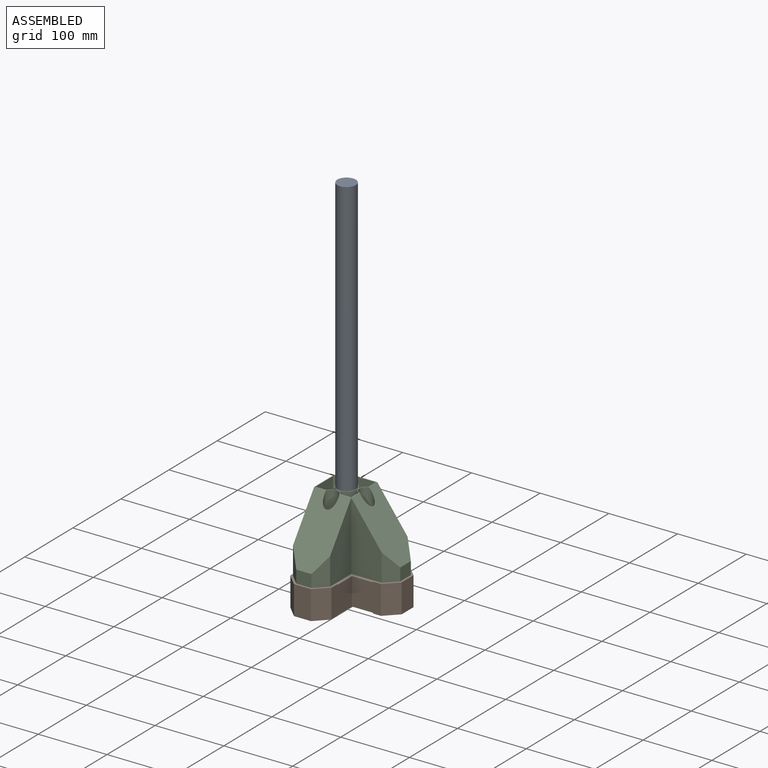
[diagram: assembled view]
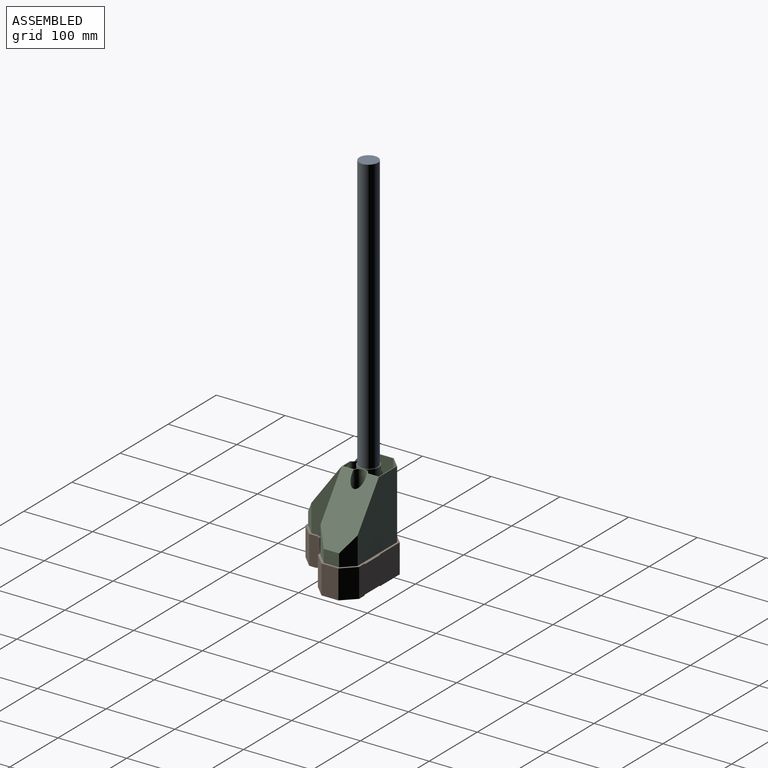
[diagram: assembled view, second angle]
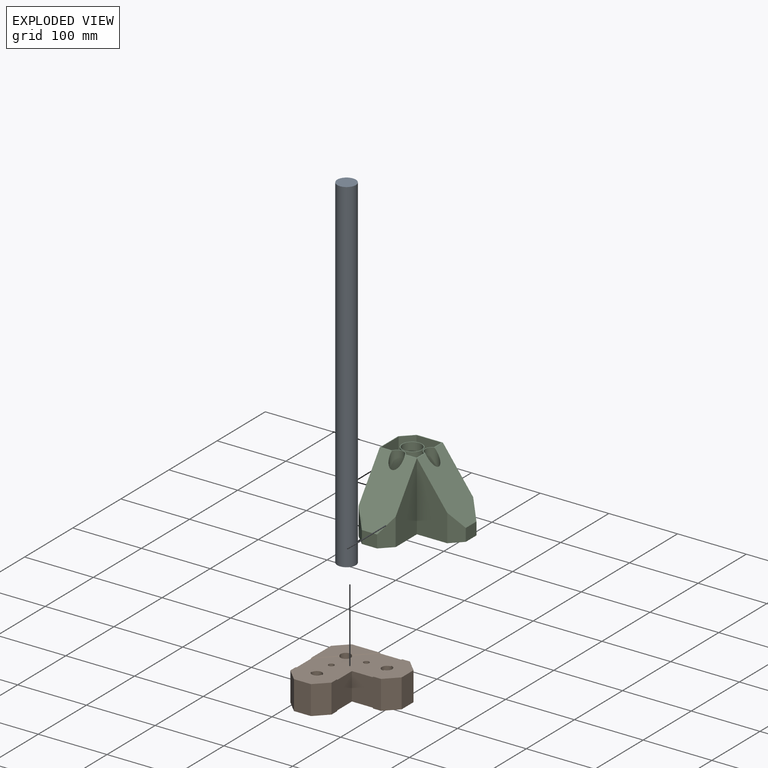
[diagram: exploded view]
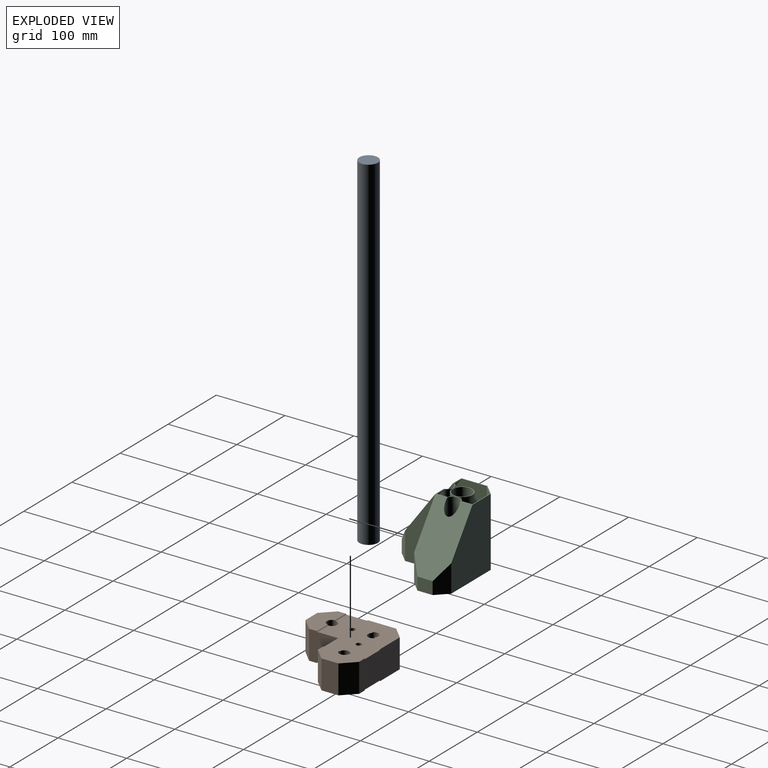
[diagram: exploded view, second angle]
ASSEMBLY  parts=3 mates=2
PART A: 3 faces, bbox 27x27x500 mm
  f0: cylinder r=13.5mm len=500mm, axis (0,0,-1), area 42411.5mm2, adj f1,f2
  f1: plane 27x27mm, normal (0,0,1), area 572.6mm2, adj f0
  f2: plane 27x27mm, normal (0,0,-1), area 572.6mm2, adj f0
PART B: 107 faces, bbox 120x120x42 mm
  f0: plane 90x90mm, normal (0,0,-1), area 4448.7mm2, adj f10,f14,f15,f19,f26,f28,f30,f34
  f1: plane 90x90mm, normal (0,0,1), area 5034.4mm2, adj f10,f14,f15,f19,f20,f22,f24,f32
  f2: plane 38x15.74mm, normal (0,1,0), area 598mm2, adj f7,f8,f84,f87
  f3: plane 38x2mm, normal (-1,0,0), area 76mm2, adj f7,f8,f48,f85
  f4: plane 38x7.25mm, normal (0,1,0), area 275.5mm2, adj f7,f8,f49,f83
  f5: plane 38x15.74mm, normal (-1,0,0), area 598mm2, adj f7,f8,f81,f86
  f6: plane 38x7.25mm, normal (-1,0,0), area 275.5mm2, adj f7,f8,f47,f82
  f7: plane 118x118mm, normal (0,0,-1), area 8698.4mm2, adj f2,f3,f4,f5,f6,f9,f44,f45
  f8: plane 118x118mm, normal (0,0,1), area 7734.2mm2, adj f2,f3,f4,f5,f6,f9,f44,f45
  f9: plane 42x17.68mm, normal (-0.71,0.71,0), area 207.5mm2, adj f7,f8,f10,f19,f44,f52,f91,f98
  f10: plane 84.64x42mm, normal (-1,0,0), area 3492.7mm2, adj f0,f1,f9,f11,f89,f91,f92,f96
  f11: plane 42x17.68mm, normal (-0.71,-0.71,0), area 1050mm2, adj f10,f12,f89,f99
  f12: plane 42x24.64mm, normal (0,-1,0), area 1035.1mm2, adj f11,f13,f89,f99
  f13: plane 42x17.68mm, normal (0.71,-0.71,0), area 1050mm2, adj f12,f14,f89,f99
  f14: plane 42.32x42mm, normal (1,0,0), area 1716.5mm2, adj f0,f1,f13,f15,f89,f97,f99,f106
  f15: plane 42.32x42mm, normal (0,-1,0), area 1716.5mm2, adj f0,f1,f14,f16,f90,f95,f100,f104
  f16: plane 42x17.68mm, normal (0.71,-0.71,0), area 1050mm2, adj f15,f17,f90,f100
  f17: plane 42x24.64mm, normal (1,0,0), area 1035.1mm2, adj f16,f18,f90,f100
  f18: plane 42x17.68mm, normal (0.71,0.71,0), area 1050mm2, adj f17,f19,f90,f100
  f19: plane 84.64x42mm, normal (0,1,0), area 3492.7mm2, adj f0,f1,f9,f18,f90,f91,f93,f94
  f20: cylinder r=7.5mm len=16mm, axis (0,0,1), area 729.4mm2, adj f1,f21,f91,f92,f93
  f21: plane 15x15mm, normal (0,0,1), area 34.8mm2, adj f20,f31
  f22: cylinder r=7.5mm len=16mm, axis (0,0,1), area 729.4mm2, adj f1,f23,f89,f96,f97
  f23: plane 15x15mm, normal (0,0,1), area 34.8mm2, adj f22,f29
  f24: cylinder r=7.5mm len=16mm, axis (0,0,1), area 729.4mm2, adj f1,f25,f90,f94,f95
  f25: plane 15x15mm, normal (0,0,1), area 34.8mm2, adj f24,f27
  f26: cylinder r=3.3mm len=22.58mm, axis (0,0,1), area 456.8mm2, adj f0,f27,f100,f103,f104
  f27: cone r=3.3mm half-angle=45deg, axis (0,0,1), area 152.3mm2, adj f25,f26
  f28: cylinder r=3.3mm len=22.58mm, axis (0,0,1), area 456.8mm2, adj f0,f29,f99,f105,f106
  f29: cone r=3.3mm half-angle=45deg, axis (0,0,1), area 152.3mm2, adj f23,f28
  f30: cylinder r=3.3mm len=22.58mm, axis (0,0,1), area 456.8mm2, adj f0,f31,f98,f101,f102
  f31: cone r=3.3mm half-angle=45deg, axis (0,0,1), area 152.3mm2, adj f21,f30
  f32: cylinder r=4mm len=30mm, axis (0,0,1), area 754mm2, adj f1,f43
  f33: cylinder r=4mm len=30mm, axis (0,0,1), area 754mm2, adj f1,f38
  f34: plane 30x10mm, normal (0,-1,0), area 300mm2, adj f0,f35,f37,f38
  f35: plane 15x10mm, normal (1,0,0), area 150mm2, adj f0,f34,f36,f38
  f36: plane 30x10mm, normal (0,1,0), area 300mm2, adj f0,f35,f37,f38
  f37: plane 15x10mm, normal (-1,0,0), area 150mm2, adj f0,f34,f36,f38
  f38: plane 30x15mm, normal (0,0,-1), area 399.7mm2, adj f33,f34,f35,f36,f37
  f39: plane 15x10mm, normal (0,1,0), area 150mm2, adj f0,f40,f42,f43
  f40: plane 30x10mm, normal (-1,0,0), area 300mm2, adj f0,f39,f41,f43
  f41: plane 15x10mm, normal (0,-1,0), area 150mm2, adj f0,f40,f42,f43
  f42: plane 30x10mm, normal (1,0,0), area 300mm2, adj f0,f39,f41,f43
  f43: plane 30x15mm, normal (0,0,-1), area 399.7mm2, adj f32,f39,f40,f41,f42
  f44: plane 85.23x38mm, normal (1,0,0), area 3238.8mm2, adj f7,f8,f9,f45
  f45: plane 38x17.09mm, normal (0.71,0.71,0), area 918.5mm2, adj f7,f8,f44,f46
  f46: plane 38x23.82mm, normal (0,1,0), area 905mm2, adj f7,f8,f45,f47
  f47: plane 38x17.09mm, normal (-0.71,0.71,0), area 918.5mm2, adj f6,f7,f8,f46
  f48: plane 38x2mm, normal (0,1,0), area 76mm2, adj f3,f7,f8,f88
  f49: plane 38x17.09mm, normal (-0.71,0.71,0), area 918.5mm2, adj f4,f7,f8,f50
  f50: plane 38x23.82mm, normal (-1,0,0), area 905mm2, adj f7,f8,f49,f51
  f51: plane 38x17.09mm, normal (-0.71,-0.71,0), area 918.5mm2, adj f7,f8,f50,f52
  f52: plane 85.23x38mm, normal (0,-1,0), area 3238.8mm2, adj f7,f8,f9,f51
  f53: cylinder r=8.5mm len=17mm, axis (0,0,1), area 801.1mm2, adj f7,f54
  f54: plane 17x17mm, normal (0,0,-1), area 67.1mm2, adj f53,f64
  f55: cylinder r=8.5mm len=17mm, axis (0,0,1), area 801.1mm2, adj f7,f56
  f56: plane 17x17mm, normal (0,0,-1), area 67.1mm2, adj f55,f62
  f57: cylinder r=8.5mm len=17mm, axis (0,0,1), area 801.1mm2, adj f7,f58
  f58: plane 17x17mm, normal (0,0,-1), area 67.1mm2, adj f57,f60
  f59: cylinder r=4.3mm len=20.17mm, axis (0,0,1), area 544.8mm2, adj f8,f60
  f60: cone r=4.01mm half-angle=45deg, axis (0,0,1), area 144mm2, adj f58,f59
  f61: cylinder r=4.3mm len=20.17mm, axis (0,0,1), area 544.8mm2, adj f8,f62
  f62: cone r=4.01mm half-angle=45deg, axis (0,0,1), area 144mm2, adj f56,f61
  f63: cylinder r=4.3mm len=20.17mm, axis (0,0,1), area 544.8mm2, adj f8,f64
  f64: cone r=4.01mm half-angle=45deg, axis (0,0,1), area 144mm2, adj f54,f63
  f65: cylinder r=5mm len=28mm, axis (0,0,1), area 879.6mm2, adj f7,f76
  f66: cylinder r=5mm len=28mm, axis (0,0,1), area 879.6mm2, adj f7,f71
  f67: plane 32x5mm, normal (0,1,0), area 160mm2, adj f68,f70,f71,f77
  f68: plane 17x5mm, normal (-1,0,0), area 85mm2, adj f67,f69,f71,f78
  f69: plane 37x10mm, normal (0,-1,0), area 332.5mm2, adj f8,f68,f70,f71,f78
  f70: plane 22x10mm, normal (1,0,0), area 182.5mm2, adj f8,f67,f69,f71,f77
  f71: plane 32x17mm, normal (0,0,1), area 465.5mm2, adj f66,f67,f68,f69,f70
  f72: plane 22x10mm, normal (0,-1,0), area 182.5mm2, adj f8,f73,f75,f76,f79
  f73: plane 37x10mm, normal (1,0,0), area 332.5mm2, adj f8,f72,f74,f76,f80
  f74: plane 17x5mm, normal (0,1,0), area 85mm2, adj f73,f75,f76,f80
  f75: plane 32x5mm, normal (-1,0,0), area 160mm2, adj f72,f74,f76,f79
  f76: plane 32x17mm, normal (0,0,1), area 465.5mm2, adj f65,f72,f73,f74,f75
  f77: plane 37x5mm, normal (0,0.71,0.71), area 244mm2, adj f8,f67,f70,f78
  f78: plane 22x5mm, normal (-0.71,0,0.71), area 137.9mm2, adj f8,f68,f69,f77
  f79: plane 37x5mm, normal (-0.71,0,0.71), area 244mm2, adj f8,f72,f75,f80
  f80: plane 22x5mm, normal (0,0.71,0.71), area 137.9mm2, adj f8,f73,f74,f79
  f81: plane 38x4.66mm, normal (-0.71,0.71,0), area 250.3mm2, adj f5,f7,f8,f82
  f82: plane 38x4.66mm, normal (-0.71,-0.71,0), area 250.3mm2, adj f6,f7,f8,f81
  f83: plane 38x4.66mm, normal (0.71,0.71,0), area 250.3mm2, adj f4,f7,f8,f84
  f84: plane 38x4.66mm, normal (-0.71,0.71,0), area 250.3mm2, adj f2,f7,f8,f83
  f85: plane 38x4.3mm, normal (-0.71,0.71,0), area 231.3mm2, adj f3,f7,f8,f86
  f86: plane 38x4.3mm, normal (-0.71,-0.71,0), area 231.3mm2, adj f5,f7,f8,f85
  f87: plane 38x4.3mm, normal (0.71,0.71,0), area 231.3mm2, adj f2,f7,f8,f88
  f88: plane 38x4.3mm, normal (-0.71,0.71,0), area 231.3mm2, adj f7,f8,f48,f87
  f89: plane 60x29mm, normal (0,0,1), area 1354.1mm2, adj f10,f11,f12,f13,f14,f22,f96,f97
  f90: plane 60x29mm, normal (0,0,1), area 1354.1mm2, adj f15,f16,f17,f18,f19,f24,f94,f95
  f91: plane 58.59x58.59mm, normal (0,0,1), area 1486.5mm2, adj f9,f10,f19,f20,f92,f93
  f92: plane 25.45x24.7mm, normal (0.5,-0.5,0.71), area 48.7mm2, adj f1,f10,f20,f91
  f93: plane 25.45x24.7mm, normal (0.5,-0.5,0.71), area 48.7mm2, adj f1,f19,f20,f91
  f94: plane 22.57x1mm, normal (-0.71,0,0.71), area 31.9mm2, adj f1,f19,f24,f90
  f95: plane 22.57x1mm, normal (-0.71,0,0.71), area 31.9mm2, adj f1,f15,f24,f90
  f96: plane 22.57x1mm, normal (0,0.71,0.71), area 31.9mm2, adj f1,f10,f22,f89
  f97: plane 22.57x1mm, normal (0,0.71,0.71), area 31.9mm2, adj f1,f14,f22,f89
  f98: plane 58.59x58.59mm, normal (0,0,-1), area 1549.3mm2, adj f9,f10,f19,f30,f101,f102
  f99: plane 60x29mm, normal (0,0,-1), area 1416.9mm2, adj f10,f11,f12,f13,f14,f28,f105,f106
  f100: plane 60x29mm, normal (0,0,-1), area 1416.9mm2, adj f15,f16,f17,f18,f19,f26,f103,f104
  f101: plane 28.5x27.68mm, normal (0.5,-0.5,-0.71), area 54.7mm2, adj f0,f10,f30,f98
  f102: plane 28.5x27.68mm, normal (0.5,-0.5,-0.71), area 54.7mm2, adj f0,f19,f30,f98
  f103: plane 26.87x1.01mm, normal (-0.71,0,-0.71), area 37.8mm2, adj f0,f19,f26,f100
  f104: plane 26.87x1.01mm, normal (-0.71,0,-0.71), area 37.8mm2, adj f0,f15,f26,f100
  f105: plane 26.87x1.01mm, normal (0,0.71,-0.71), area 37.8mm2, adj f0,f10,f28,f99
  f106: plane 26.87x1.01mm, normal (0,0.71,-0.71), area 37.8mm2, adj f0,f14,f28,f99
PART C: 168 faces, bbox 114.1x114.1x100.1 mm
  f0: plane 81.72x60.05mm, normal (0,-0.81,0.59), area 3777.9mm2, adj f2,f3,f27,f29,f33,f40,f108,f109
  f1: plane 39.9x15.92mm, normal (-0.71,-0.71,0), area 655mm2, adj f2,f3,f20,f37,f109,f110
  f2: plane 100x82.16mm, normal (-1,0,0), area 6892.8mm2, adj f0,f1,f27,f32,f37,f108,f109
  f3: plane 22.16x18.33mm, normal (0,-1,0), area 406.2mm2, adj f0,f1,f20,f29,f37
  f4: plane 32.61x25.25mm, normal (0,0,1), area 672.1mm2, adj f5,f14,f54,f93,f98,f102,f106
  f5: plane 98.67x44.67mm, normal (0,1,0), area 2924mm2, adj f4,f7,f10,f59,f60,f96,f101,f102
  f6: plane 32.61x24.55mm, normal (0,0,1), area 662.9mm2, adj f19,f54,f59,f76,f82,f87,f105
  f7: plane 36.96x25.25mm, normal (0,0,1), area 815.7mm2, adj f5,f12,f60,f100,f101
  f8: plane 36.96x25.25mm, normal (0,0,1), area 815.7mm2, adj f11,f13,f57,f99,f104
  f9: plane 81.67x60mm, normal (0.81,0,0.59), area 4679.2mm2, adj f27,f30,f31,f34,f35,f36,f42
  f10: plane 82x60.24mm, normal (-0.81,0,-0.59), area 4359.5mm2, adj f5,f11,f12,f13,f21,f27,f57,f60
  f11: plane 99x81.33mm, normal (0,-1,0), area 6532.3mm2, adj f8,f10,f15,f17,f27,f57,f58,f90
  f12: plane 17x9.92mm, normal (-1,0,0), area 168.6mm2, adj f7,f10,f60,f100
  f13: plane 17x9.92mm, normal (-1,0,0), area 168.6mm2, adj f8,f10,f57,f99
  f14: cylinder r=5mm len=64.31mm, axis (0,0,1), area 1798mm2, adj f4,f15,f17,f74,f90,f91,f92,f93
  f15: plane 54.5x54.5mm, normal (0,0,1), area 1642mm2, adj f11,f14,f19,f24,f54,f58,f75,f79
  f16: plane 36.96x24.64mm, normal (0,0,1), area 791.5mm2, adj f23,f56,f59,f83,f84
  f17: plane 25.25x17.54mm, normal (0,0,1), area 427mm2, adj f11,f14,f92,f97,f103
  f18: plane 25.99x17.54mm, normal (0,0,1), area 436mm2, adj f19,f24,f80,f86,f88
  f19: cylinder r=5mm len=64.31mm, axis (0,0,1), area 1797.1mm2, adj f6,f15,f18,f73,f75,f76,f77,f78
  f20: plane 12.46x0.04mm, normal (0,-0.81,0.59), area 0.3mm2, adj f1,f3,f110
  f21: plane 82.12x60.36mm, normal (0,0.81,-0.59), area 4359.5mm2, adj f10,f22,f23,f24,f27,f55,f56,f59
  f22: plane 17x10.52mm, normal (0,1,0), area 178.9mm2, adj f21,f25,f55,f85
  f23: plane 17x9.31mm, normal (0,1,0), area 158.3mm2, adj f16,f21,f56,f84
  f24: plane 99x81.33mm, normal (1,0,0), area 6532.3mm2, adj f15,f18,f21,f25,f27,f55,f58,f78
  f25: plane 36.96x25.95mm, normal (0,0,1), area 839.8mm2, adj f22,f24,f55,f85,f89
  f26: plane 29.5x29.5mm, normal (0,0,1), area 89.5mm2, adj f28,f54
  f27: plane 54x54mm, normal (0,0,1), area 230.1mm2, adj f0,f2,f9,f10,f11,f21,f24,f31
  f28: cylinder r=13.75mm len=100mm, axis (0,0,-1), area 8594mm2, adj f26,f37,f44,f45,f46,f47,f48,f49
  f29: plane 40x15.92mm, normal (0.71,-0.71,0), area 656.6mm2, adj f0,f3,f33,f37
  f30: plane 40x15.92mm, normal (0.71,0.71,0), area 656.6mm2, adj f9,f31,f36,f37
  f31: plane 100x82.16mm, normal (0,1,0), area 6893.5mm2, adj f9,f27,f30,f32,f37
  f32: plane 100x15.92mm, normal (-0.71,0.71,0), area 2198mm2, adj f2,f27,f31,f37,f53
  f33: plane 100x44.08mm, normal (1,0,0), area 3085.6mm2, adj f0,f29,f34,f37
  f34: plane 100x44.08mm, normal (0,-1,0), area 3085.6mm2, adj f9,f33,f35,f37
  f35: plane 40x15.92mm, normal (0.71,-0.71,0), area 656.6mm2, adj f9,f34,f36,f37
  f36: plane 22.16x18.33mm, normal (1,0,0), area 406.2mm2, adj f9,f30,f35,f37
  f37: plane 114x114mm, normal (0,0,-1), area 8067.9mm2, adj f1,f2,f3,f28,f29,f30,f31,f32
  f38: cylinder r=4mm len=72.31mm, axis (0,0,1), area 1817.2mm2, adj f37,f39
  f39: plane 20x20mm, normal (0,0,1), area 263.9mm2, adj f38,f40
  f40: cylinder r=10mm len=27.7mm, axis (0,0,1), area 1327.2mm2, adj f0,f27,f39
  f41: cylinder r=4mm len=72.31mm, axis (0,0,1), area 1817.2mm2, adj f37,f43
  f42: cylinder r=10mm len=27.7mm, axis (0,0,1), area 1327.3mm2, adj f9,f27,f43
  f43: plane 20x20mm, normal (0,0,1), area 263.9mm2, adj f41,f42
  f44: plane 4.86x4.84mm, normal (-0.71,-0.71,-0.03), area 28mm2, adj f28,f45,f49,f50
  f45: plane 7.35x7.03mm, normal (-0.34,-0.34,-0.88), area 26.6mm2, adj f28,f44,f46,f50
  f46: plane 7.29x6.94mm, normal (0.37,0.37,-0.85), area 26.7mm2, adj f28,f45,f47,f50
  f47: plane 4.86x4.84mm, normal (0.71,0.71,0.03), area 28mm2, adj f28,f46,f48,f50
  f48: plane 7.35x7.03mm, normal (0.34,0.34,0.88), area 26.6mm2, adj f28,f47,f49,f50
  f49: plane 7.29x6.94mm, normal (-0.37,-0.37,0.85), area 26.7mm2, adj f28,f44,f48,f50
  f50: plane 8.31x5.18mm, normal (0.71,-0.71,0), area 29.7mm2, adj f44,f45,f46,f47,f48,f49,f51
  f51: cylinder r=2.2mm len=8.45mm, axis (-0.71,0.71,0), area 104.4mm2, adj f50,f52
  f52: plane 8.25x5.83mm, normal (-0.71,0.71,0), area 38.3mm2, adj f51,f53
  f53: cylinder r=4.12mm len=9.37mm, axis (-0.71,0.71,0), area 129.6mm2, adj f32,f52
  f54: cylinder r=14.75mm len=99mm, axis (0,0,-1), area 8879.9mm2, adj f4,f6,f15,f26,f63,f64,f65,f66
  f55: plane 37.87x15.33mm, normal (0.71,0.71,0), area 595mm2, adj f21,f22,f24,f25
  f56: plane 37.87x15.33mm, normal (-0.71,0.71,0), area 595mm2, adj f16,f21,f23,f59
  f57: plane 37.87x15.33mm, normal (-0.71,-0.71,0), area 595mm2, adj f8,f10,f11,f13
  f58: plane 99x15.33mm, normal (0.71,-0.71,0), area 2064.4mm2, adj f11,f15,f24,f27,f72
  f59: plane 98.67x44.67mm, normal (-1,0,0), area 2924mm2, adj f5,f6,f16,f21,f56,f81,f82,f83
  f60: plane 37.87x15.33mm, normal (-0.71,0.71,0), area 595mm2, adj f5,f7,f10,f12
  f61: cylinder r=11mm len=28.7mm, axis (0,0,1), area 1429.4mm2, adj f21,f27,f73
  f62: cylinder r=11mm len=28.7mm, axis (0,0,1), area 1429.6mm2, adj f10,f27,f74
  f63: plane 5.31x5.07mm, normal (0.71,0.71,0.03), area 37.1mm2, adj f54,f64,f68,f69
  f64: plane 8.26x7.76mm, normal (0.34,0.34,0.88), area 34.4mm2, adj f54,f63,f65,f69
  f65: plane 8.19x7.65mm, normal (-0.37,-0.37,0.85), area 34.6mm2, adj f54,f64,f66,f69
  f66: plane 5.31x5.07mm, normal (-0.71,-0.71,-0.03), area 37.1mm2, adj f54,f65,f67,f69
  f67: plane 8.26x7.76mm, normal (-0.34,-0.34,-0.88), area 34.4mm2, adj f54,f66,f68,f69
  f68: plane 8.19x7.65mm, normal (0.37,0.37,-0.85), area 34.6mm2, adj f54,f63,f67,f69
  f69: plane 10.62x6.61mm, normal (-0.71,0.71,0), area 41.1mm2, adj f63,f64,f65,f66,f67,f68,f70
  f70: cylinder r=3.2mm len=8.45mm, axis (-0.71,0.71,0), area 111.7mm2, adj f69,f71
  f71: plane 10.25x7.25mm, normal (0.71,-0.71,0), area 50.3mm2, adj f70,f72
  f72: cylinder r=5.12mm len=10.78mm, axis (-0.71,0.71,0), area 161mm2, adj f58,f71
  f73: cone r=11mm half-angle=45deg, axis (0,0,1), area 426.5mm2, adj f19,f61
  f74: cone r=11mm half-angle=45deg, axis (0,0,1), area 426.5mm2, adj f14,f62
  f75: plane 49x6.57mm, normal (-0.99,0.15,0), area 325.8mm2, adj f15,f19,f54,f77
  f76: plane 49x6.57mm, normal (0.99,-0.15,0), area 325.8mm2, adj f6,f19,f54,f77
  f77: plane 6.8x2.49mm, normal (0,0,1), area 9.9mm2, adj f19,f54,f75,f76
  f78: plane 21.23x1.5mm, normal (0,0,1), area 31.6mm2, adj f19,f24,f79,f80
  f79: plane 49x21.23mm, normal (0,1,0), area 884.3mm2, adj f15,f19,f24,f78,f116,f117,f118,f119
  f80: plane 49x21mm, normal (0,-1,0), area 873.1mm2, adj f18,f19,f24,f78,f116,f117,f118,f119
  f81: plane 52x27.72mm, normal (0,0,1), area 117.1mm2, adj f19,f21,f24,f59,f82,f83,f84,f85
  f82: plane 49x24.55mm, normal (0,1,0), area 1202.7mm2, adj f6,f59,f81,f87
  f83: plane 49x24.55mm, normal (0,-1,0), area 1202.9mm2, adj f16,f59,f81,f84
  f84: plane 49x36.96mm, normal (1,0,0), area 1170.1mm2, adj f16,f21,f23,f81,f83,f132,f133,f134
  f85: plane 49x36.96mm, normal (-1,0,0), area 1170.1mm2, adj f21,f22,f25,f81,f89,f132,f133,f134
  f86: plane 49x12.54mm, normal (-1,0,0), area 498.6mm2, adj f18,f19,f81,f88,f127,f128,f129,f130
  f87: plane 49x12.77mm, normal (1,0,0), area 509.7mm2, adj f6,f19,f81,f82,f127,f128,f129,f130
  f88: plane 49x25.95mm, normal (0,1,0), area 1115.8mm2, adj f18,f24,f81,f86,f111,f112,f113,f114
  f89: plane 49x25.95mm, normal (0,-1,0), area 1115.7mm2, adj f24,f25,f81,f85,f111,f112,f113,f114
  f90: plane 21.23x1.5mm, normal (0,0,1), area 31.6mm2, adj f11,f14,f91,f92
  f91: plane 49x21.23mm, normal (-1,0,0), area 932.6mm2, adj f11,f14,f15,f90,f124,f125,f126
  f92: plane 49x21mm, normal (1,0,0), area 921.3mm2, adj f11,f14,f17,f90,f124,f125,f126
  f93: plane 49x6.57mm, normal (0.15,-0.99,0), area 325.8mm2, adj f4,f14,f54,f95
  f94: plane 49x6.57mm, normal (-0.15,0.99,0), area 325.8mm2, adj f14,f15,f54,f95
  f95: plane 6.8x2.49mm, normal (0,0,1), area 9.9mm2, adj f14,f54,f93,f94
  f96: plane 52x27.55mm, normal (0,0,1), area 117mm2, adj f5,f10,f11,f14,f97,f98,f99,f100
  f97: plane 49x12.6mm, normal (0,1,0), area 500.1mm2, adj f14,f17,f96,f103,f152,f153,f154,f155
  f98: plane 49x12.6mm, normal (0,-1,0), area 500.1mm2, adj f4,f14,f96,f102,f152,f153,f154,f155
  f99: plane 49x36.96mm, normal (0,1,0), area 1222.2mm2, adj f8,f10,f13,f96,f104,f145,f146,f147
  f100: plane 49x36.96mm, normal (0,-1,0), area 1222.2mm2, adj f7,f10,f12,f96,f101,f145,f146,f147
  f101: plane 49x25.25mm, normal (1,0,0), area 980.9mm2, adj f5,f7,f96,f100,f157,f158,f159,f160
  f102: plane 49x25.25mm, normal (-1,0,0), area 980.9mm2, adj f4,f5,f96,f98,f157,f158,f159,f160
  f103: plane 49x25.25mm, normal (-1,0,0), area 1129.5mm2, adj f11,f17,f96,f97,f121,f122,f123
  f104: plane 49x25.25mm, normal (1,0,0), area 1129.5mm2, adj f8,f11,f96,f99,f121,f122,f123
  f105: plane 49x12.13mm, normal (-0.71,-0.71,0), area 840.8mm2, adj f6,f54,f59,f107
  f106: plane 49x12.13mm, normal (0.71,0.71,0), area 840.8mm2, adj f4,f5,f54,f107
  f107: plane 13.19x13.19mm, normal (0,0,1), area 25.2mm2, adj f5,f54,f59,f105,f106
  f108: plane 28.41x0.07mm, normal (0,0,-1), area 1mm2, adj f0,f2,f109
  f109: plane 31.67x28.41mm, normal (0,-0.81,0.59), area 902.8mm2, adj f0,f1,f2,f108,f110
  f110: plane 12.46x0.04mm, normal (0,1,0), area 0.3mm2, adj f1,f20,f109
  f111: cylinder r=3.08mm len=6.17mm, axis (0,1,0), area 29.1mm2, adj f88,f89
  f112: cylinder r=2.56mm len=5.13mm, axis (0,1,0), area 24.2mm2, adj f88,f89
  f113: cylinder r=3.71mm len=7.42mm, axis (0,1,0), area 34.9mm2, adj f88,f89
  f114: cylinder r=3.08mm len=6.17mm, axis (0,1,0), area 29.1mm2, adj f88,f89
  f115: cylinder r=3.21mm len=6.41mm, axis (0,1,0), area 30.2mm2, adj f88,f89
  f116: cylinder r=3.08mm len=6.17mm, axis (0,1,0), area 29.1mm2, adj f79,f80
  f117: cylinder r=2.56mm len=5.13mm, axis (0,1,0), area 24.2mm2, adj f79,f80
  f118: cylinder r=3.71mm len=7.42mm, axis (0,1,0), area 34.9mm2, adj f79,f80
  f119: cylinder r=3.08mm len=6.17mm, axis (0,1,0), area 29.1mm2, adj f79,f80
  f120: cylinder r=3.21mm len=6.41mm, axis (0,1,0), area 30.2mm2, adj f79,f80
  f121: cylinder r=3.84mm len=7.68mm, axis (-1,0,0), area 36.2mm2, adj f103,f104
  f122: cylinder r=3.01mm len=6.01mm, axis (-1,0,0), area 28.3mm2, adj f103,f104
  f123: cylinder r=3.24mm len=6.48mm, axis (-1,0,0), area 30.5mm2, adj f103,f104
  f124: cylinder r=3.84mm len=7.68mm, axis (-1,0,0), area 36.2mm2, adj f91,f92
  f125: cylinder r=3.01mm len=6.01mm, axis (-1,0,0), area 28.3mm2, adj f91,f92
  f126: cylinder r=3.24mm len=6.48mm, axis (-1,0,0), area 30.5mm2, adj f91,f92
  f127: cylinder r=3.12mm len=6.24mm, axis (-1,0,0), area 29.4mm2, adj f86,f87
  f128: cylinder r=1.57mm len=3.15mm, axis (-1,0,0), area 14.8mm2, adj f86,f87
  f129: cylinder r=2.83mm len=5.67mm, axis (-1,0,0), area 26.7mm2, adj f86,f87
  f130: cylinder r=2.43mm len=4.87mm, axis (-1,0,0), area 22.9mm2, adj f86,f87
  f131: cylinder r=3.27mm len=6.55mm, axis (-1,0,0), area 30.8mm2, adj f86,f87
  f132: cylinder r=2.72mm len=5.44mm, axis (-1,0,0), area 25.6mm2, adj f84,f85
  f133: cylinder r=2.76mm len=5.52mm, axis (-1,0,0), area 26mm2, adj f84,f85
  f134: cylinder r=2.44mm len=4.88mm, axis (-1,0,0), area 23mm2, adj f84,f85
  f135: cylinder r=1.79mm len=3.58mm, axis (-1,0,0), area 16.9mm2, adj f84,f85
  f136: cylinder r=2.97mm len=5.94mm, axis (-1,0,0), area 28mm2, adj f84,f85
  f137: cylinder r=2.83mm len=5.67mm, axis (-1,0,0), area 26.7mm2, adj f84,f85
  f138: cylinder r=2.16mm len=4.33mm, axis (-1,0,0), area 20.4mm2, adj f84,f85
  f139: cylinder r=2.36mm len=4.72mm, axis (-1,0,0), area 22.2mm2, adj f84,f85
  f140: cylinder r=2.67mm len=5.35mm, axis (-1,0,0), area 25.2mm2, adj f84,f85
  f141: cylinder r=2.13mm len=4.26mm, axis (-1,0,0), area 20.1mm2, adj f84,f85
  f142: cylinder r=1.98mm len=3.97mm, axis (-1,0,0), area 18.7mm2, adj f84,f85
  f143: cylinder r=3.29mm len=6.59mm, axis (-1,0,0), area 31mm2, adj f84,f85
  f144: cylinder r=2.58mm len=5.16mm, axis (-1,0,0), area 24.3mm2, adj f84,f85
  f145: cylinder r=3.22mm len=6.45mm, axis (0,1,0), area 30.4mm2, adj f99,f100
  f146: cylinder r=3.22mm len=6.45mm, axis (0,1,0), area 30.4mm2, adj f99,f100
  f147: cylinder r=2.64mm len=5.29mm, axis (0,1,0), area 24.9mm2, adj f99,f100
  f148: cylinder r=3.25mm len=6.51mm, axis (0,1,0), area 30.7mm2, adj f99,f100
  f149: cylinder r=2.71mm len=5.42mm, axis (0,1,0), area 25.6mm2, adj f99,f100
  f150: cylinder r=2.81mm len=5.63mm, axis (0,1,0), area 26.5mm2, adj f99,f100
  f151: cylinder r=3.75mm len=7.51mm, axis (0,1,0), area 35.4mm2, adj f99,f100
  f152: cylinder r=3.02mm len=6.03mm, axis (0,1,0), area 28.4mm2, adj f97,f98
  f153: cylinder r=3.17mm len=6.34mm, axis (0,1,0), area 29.9mm2, adj f97,f98
  f154: cylinder r=2.92mm len=5.84mm, axis (0,1,0), area 27.5mm2, adj f97,f98
  f155: cylinder r=2.13mm len=4.25mm, axis (0,1,0), area 20mm2, adj f97,f98
  f156: cylinder r=2.25mm len=4.5mm, axis (0,1,0), area 21.2mm2, adj f97,f98
  f157: cylinder r=2.41mm len=4.82mm, axis (-1,0,0), area 22.7mm2, adj f101,f102
  f158: cylinder r=2.48mm len=4.96mm, axis (-1,0,0), area 23.4mm2, adj f101,f102
  f159: cylinder r=3.06mm len=6.11mm, axis (-1,0,0), area 28.8mm2, adj f101,f102
  f160: cylinder r=3mm len=6mm, axis (-1,0,0), area 28.3mm2, adj f101,f102
  f161: cylinder r=2.92mm len=5.85mm, axis (-1,0,0), area 27.6mm2, adj f101,f102
  f162: cylinder r=2.4mm len=4.79mm, axis (-1,0,0), area 22.6mm2, adj f101,f102
  f163: cylinder r=2.61mm len=5.22mm, axis (-1,0,0), area 24.6mm2, adj f101,f102
  f164: cylinder r=2.42mm len=4.84mm, axis (-1,0,0), area 22.8mm2, adj f101,f102
  f165: cylinder r=3.4mm len=6.8mm, axis (-1,0,0), area 32.1mm2, adj f101,f102
  f166: cylinder r=2.3mm len=4.6mm, axis (-1,0,0), area 21.7mm2, adj f101,f102
  f167: cylinder r=2.73mm len=5.46mm, axis (-1,0,0), area 25.7mm2, adj f101,f102
PLACE A t=(-202.42,140.11,200.23)mm
PLACE B t=(-164.91,103.22,159.23)mm
PLACE C t=(-164.91,103.22,160.23)mm
MATE fastened C.f28 <-> A.f0  axis (0,0,-1) through (-160.93,99.24,200.23)mm
MATE slider C.f14 <-> B.f33  axis (0,0,-1) through (-134.91,103.22,200.23)mm
